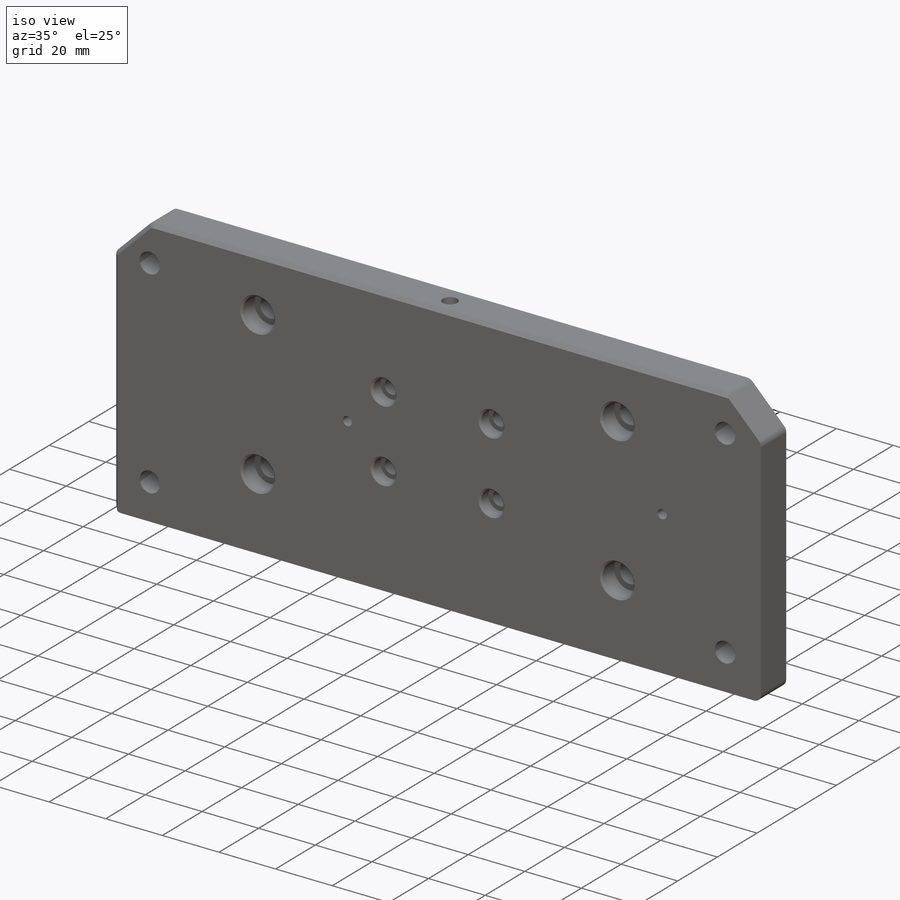
[diagram: iso view]
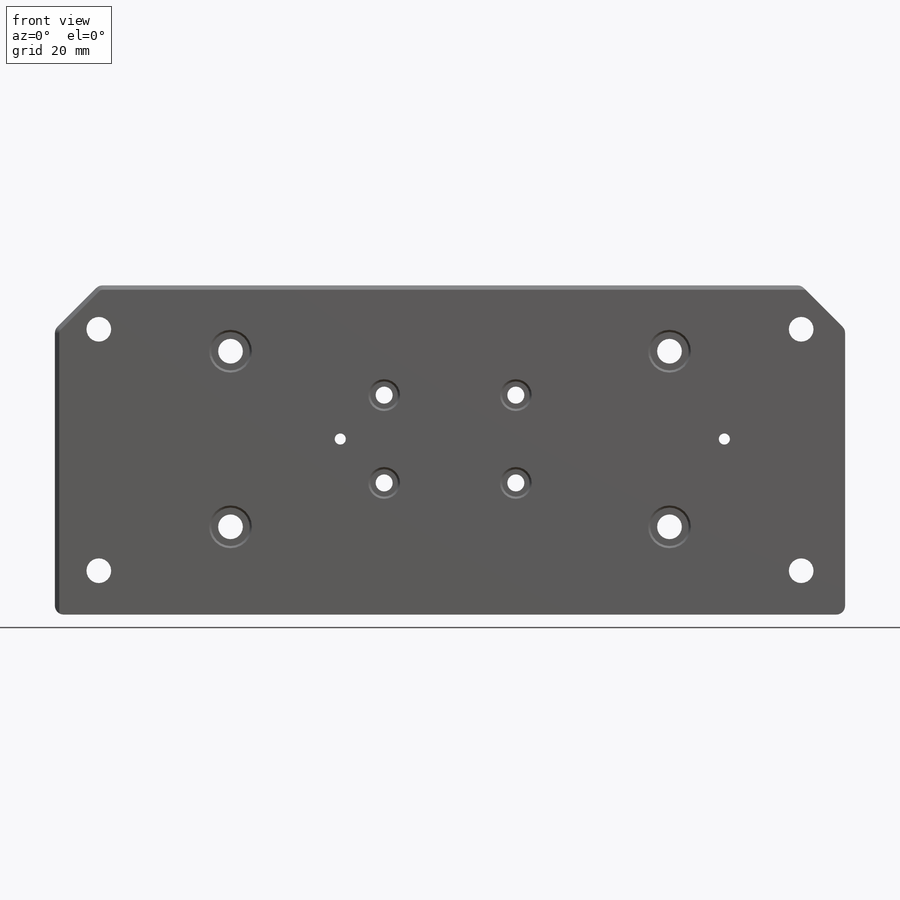
[diagram: front view]
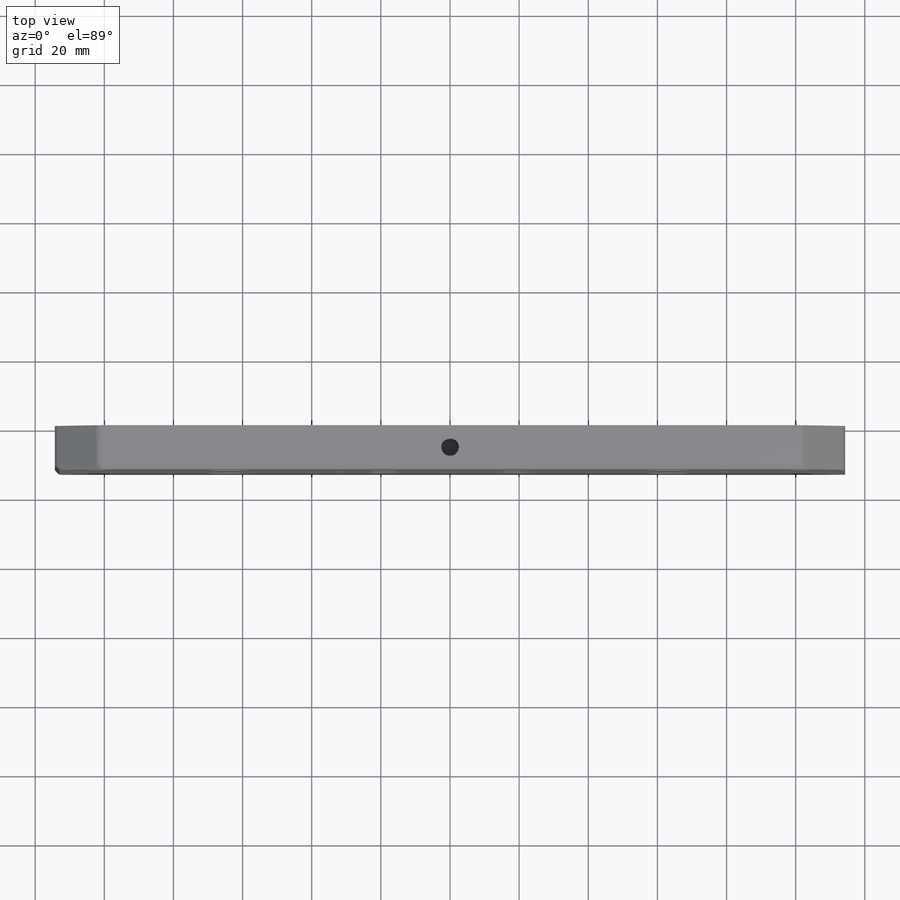
[diagram: top view]
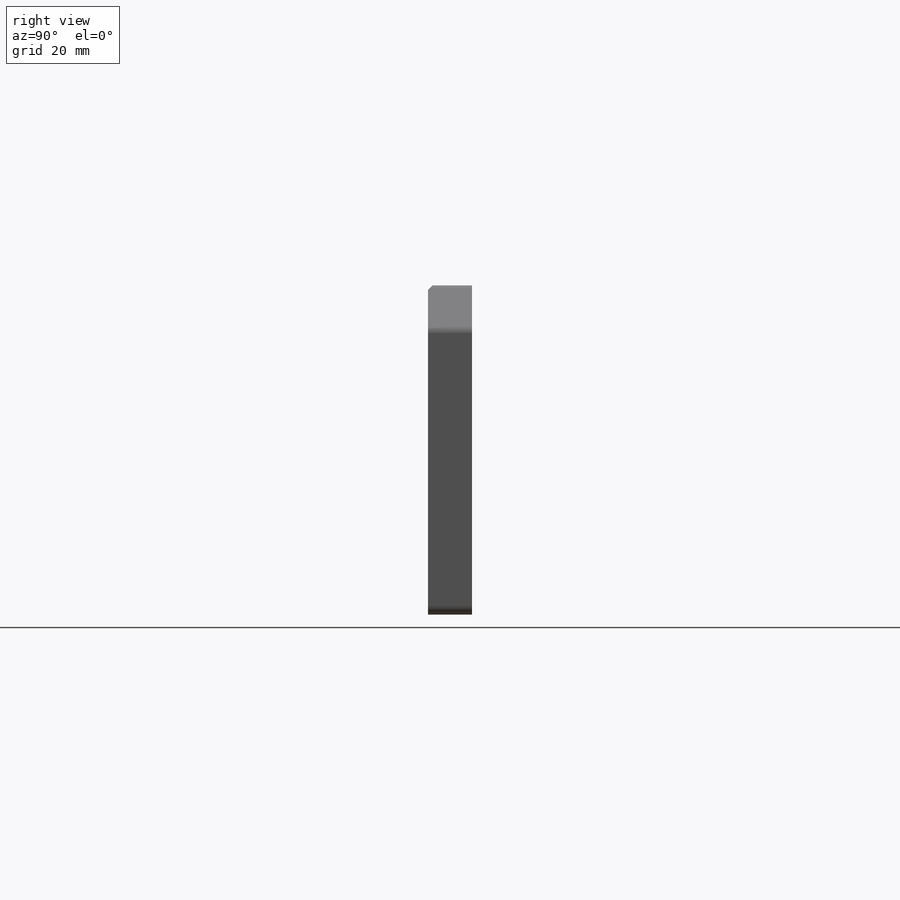
[diagram: right view]
SOLIDWORKS PART (.sldprt)
format: sldprt  version: not decoded by parser v0  size: 553,472 bytes
history: native  units: mm
features: sketch x17, hole x7, pattern_linear x3, chamfer x2, cut_extrude x2, thread x2, material x1, extrude x1, fillet x1 + 1 further entry (+13 scaffold rows collapsed)
feature tree (50):
  scaffold x13  (default folders/planes/origin — collapsed)
  material  "6061 Alloy"
  "Origin"  ID=-1
  sketch  "Sketch1"  dims[D1=228.6mm D2=95.25mm]
  extrude  "Extrude1"  Depth=12.7mm
  chamfer  "Chamfer1"  Distance=12.7mm Angle=45deg
  fillet  "Fillet1"  Radius=2.54mm
  hole  "1/4 Clearance Hole1"  Diameter=7.14248mm Depth=25.4mm
  sketch  "Sketch3"  dims[D1=12.7mm D2=12.7mm]
  sketch  "Sketch2"  dims[hole-wizard template sketch: 47 standard entries collapsed; hole parameters kept: c15.Hole Depth=25.4mm c15.D3=~14.816244mm c15.Drill Angle=118.0deg]
  pattern_linear  "LPattern2"  Count1=2 Count2=2 Spacing1=203.2mm Spacing2=69.85mm
  hole  "1/8 (0.1260) Diameter Hole1"  Diameter=3.2004mm Depth=12.7mm
  sketch  "Sketch6"  dims[D1=158.75mm D2=79.375mm D3=3.175mm]
  sketch  "Sketch5"  dims[hole-wizard template sketch: 59 standard entries collapsed; hole parameters kept: c18.Thru Hole Dia.=3.2004mm c18.Thru Hole Depth=12.7mm]
  sketch  "Sketch21"  dims[D1=6.35mm D2=79.375mm D3=3.2004mm D4=3.175mm]
  cut_extrude  "Extrude3 SLOT"  Depth=6.35mm
  hole  "1/4-20 Tapped Hole1"  [1 undecoded]
  sketch  "Sketch10"  dims[D1=6.35mm]
  thread  "Hole Thread1"  Diameter=25.4mm  [1 undecoded]
  sketch  "Sketch9"  dims[hole-wizard template sketch: 47 standard entries collapsed; hole parameters kept: c15.Tap Drill Depth=29.21mm c15.D3=~14.816244mm c15.Drill Angle=118.0deg]
  hole  "1/4-20 Tapped Hole3"  Diameter=5.1054mm Depth=29.21mm
  sketch  "Sketch12"  dims[D1=6.35mm]
  sketch  "Sketch11"  dims[hole-wizard template sketch: 47 standard entries collapsed; hole parameters kept: c15.Tap Drill Depth=29.21mm c15.D3=~14.816244mm c15.Drill Angle=118.0deg]
  thread  "Hole Thread2"  Diameter=25.4mm  [1 undecoded]
  hole  "CBORE for 1/4 Socket Head Cap Screw2"  Diameter=7.14248mm Depth=12.7mm
  sketch  "Sketch15"  dims[D1=63.5mm D2=22.225mm]
  sketch  "Sketch14"  dims[hole-wizard template sketch: 45 standard entries collapsed; hole parameters kept: c12.Near C'Sink Dia.=12.3825mm c12.D6=~4.399409mm c12.Near C'Sink Angle=90.0deg]
  pattern_linear  "LPattern3"  Count1=2 Count2=2 Spacing1=50.8mm Spacing2=127mm
  hole  "CBORE for #8 Socket Head Cap Screw1"  Diameter=4.9149mm Depth=12.7mm
  sketch  "Sketch17"  dims[D1=19.05mm D2=9.525mm]
  sketch  "Sketch16"  dims[hole-wizard template sketch: 42 standard entries collapsed; hole parameters kept: c12.Thru Hole Depth=12.7mm c12.C'Bore Dia.=7.9375mm c12.C'Bore Depth=4.1656mm c12.Near C'Sink Dia.=9.2075mm c12.D6=~4.399409mm c12.Near C'Sink Angle=90.0deg]
  pattern_linear  "LPattern4"  Count1=2 Count2=2 Spacing1=38.1mm Spacing2=25.4mm
  hole  "1/8 (0.1260) Diameter Hole2"  Diameter=3.2004mm Depth=12.7mm
  sketch  "Sketch19"  dims[c1.D1=63.5mm c1.D2=3.175mm c1.D3=31.75mm c2.D2=3.175mm]
  sketch  "Sketch18"  dims[hole-wizard template sketch: 59 standard entries collapsed; hole parameters kept: c18.Thru Hole Dia.=3.2004mm c18.Thru Hole Depth=12.7mm]
  sketch  "Sketch20"  dims[c1.D3=1.5875mm c1.D1=3.175mm c1.D2=3.2004mm c2.D3=6.35mm c2.D4=63.5mm]
  cut_extrude  "Extrude2 SLOT"  Depth=6.35mm
  chamfer  "Chamfer2"  Distance=1.27mm Angle=45deg
decode coverage: 34 of 35 modeling features carry decoded parameters; 1 rows unclassified (native names shown)
note: ~ marks probable driven/reference dimensions
note: 3 parameter values undecoded
summary: Diameter pulled from absorbed wizard sketch
note: suppression state not decoded; provenance and decode notes live in map.json
